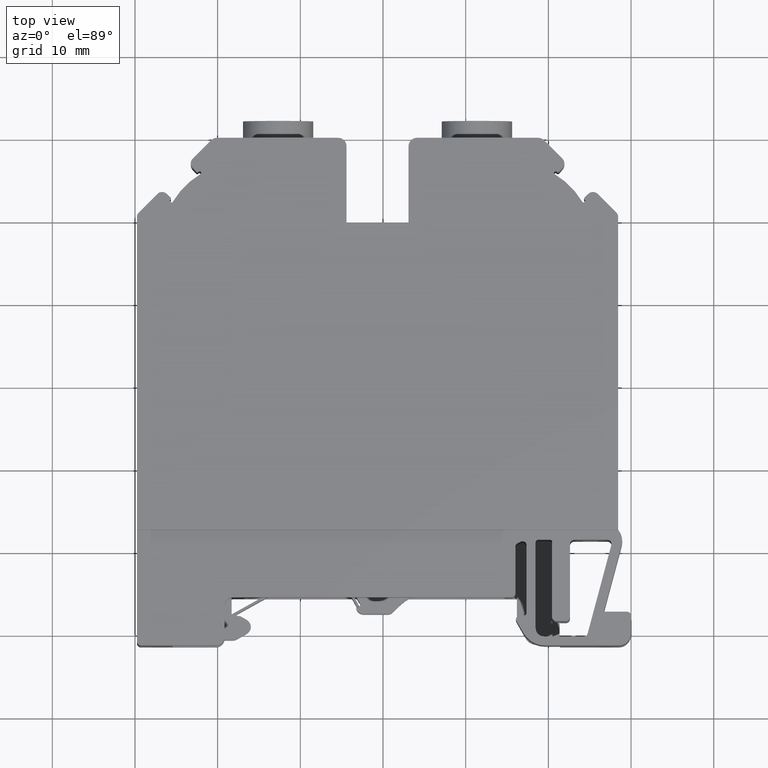
[diagram: clean part render]
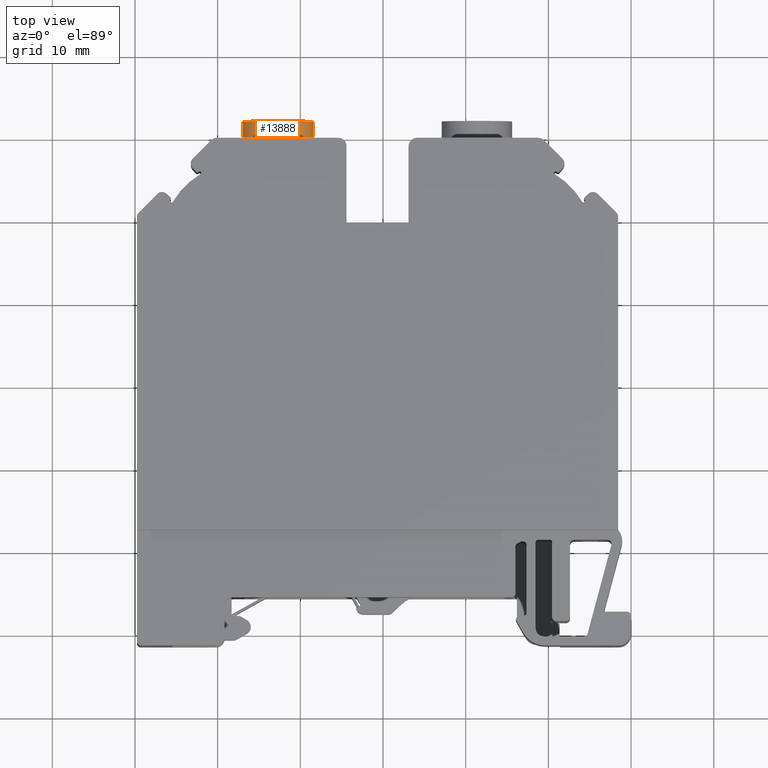
[diagram: same view with one face highlighted and labeled with its STEP entity id]
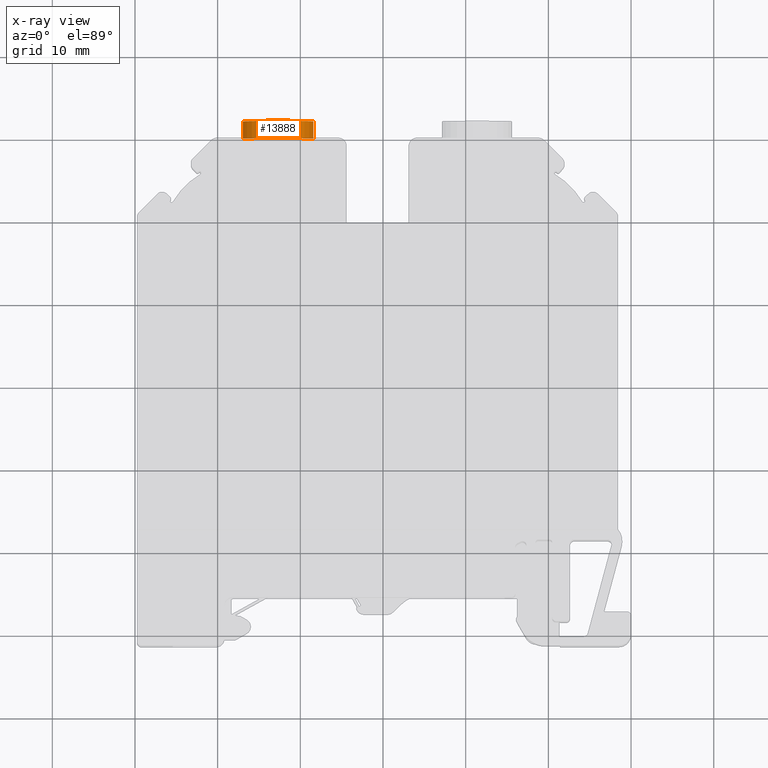
[diagram: x-ray of the same camera — body ghosted, the highlighted face saturated]
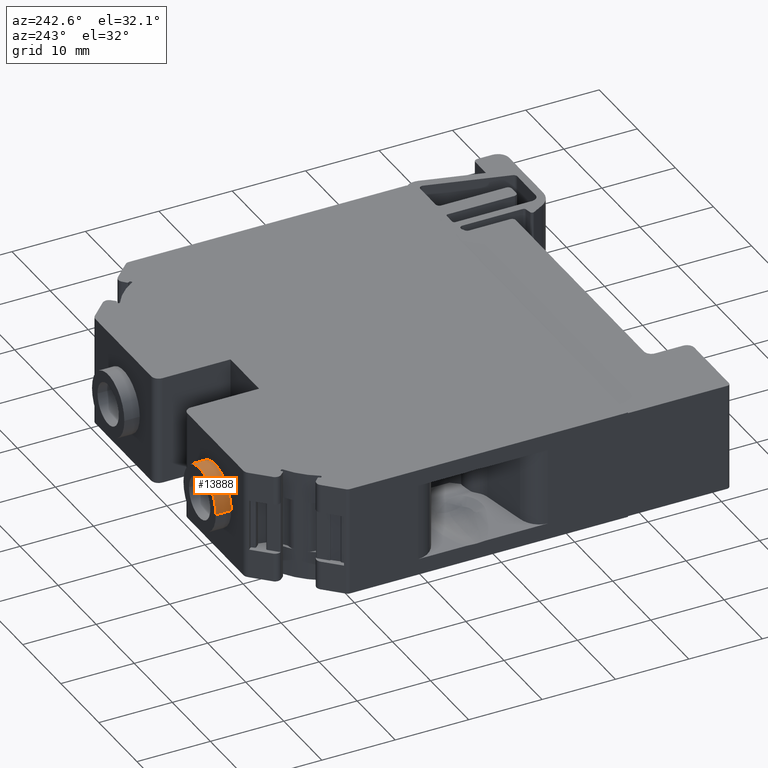
[diagram: same view with one face highlighted and labeled with its STEP entity id]
A machine part, top view. The second image highlights one B-rep face of the part: STEP entity #13888.
The next image is the same camera in x-ray: the body ghosted, the highlighted face saturated — about 0% of this face is hidden behind the body in this view.
A second angle (auxiliary view) of the same face is appended — the face is thin or edge-on in the first view.
In plain terms, the highlighted cylindrical surface (edge-blend (fillet) strip) has radius 4.25 mm, axis along (0, 1, -0).
Its self-contained STEP definition (entity closure, byte-faithful):
#196 = CARTESIAN_POINT ( 'NONE',  ( 1.567630163408580500, -39.97966301493495700, -104.2930641829441800 ) ) ;
#200 = CARTESIAN_POINT ( 'NONE',  ( 1.567630163408658000, -37.87966301493494800, -104.2930641829441800 ) ) ;
#208 = CARTESIAN_POINT ( 'NONE',  ( -6.932369836591342400, -37.87966301493462900, -104.2930641829441900 ) ) ;
#211 = CARTESIAN_POINT ( 'NONE',  ( -6.932369836591419700, -39.97966301493463700, -104.2930641829441800 ) ) ;
#5428 = VERTEX_POINT ( 'NONE', #196 ) ;
#5431 = VERTEX_POINT ( 'NONE', #200 ) ;
#5432 = VERTEX_POINT ( 'NONE', #208 ) ;
#5439 = VERTEX_POINT ( 'NONE', #211 ) ;
#6060 = ORIENTED_EDGE ( 'NONE', *, *, #10627, .F. ) ;
#6130 = ORIENTED_EDGE ( 'NONE', *, *, #10623, .T. ) ;
#6152 = ORIENTED_EDGE ( 'NONE', *, *, #11540, .F. ) ;
#6158 = ORIENTED_EDGE ( 'NONE', *, *, #11542, .T. ) ;
#6556 = AXIS2_PLACEMENT_3D ( 'NONE', #15977, #15964, #15934 ) ;
#10415 = EDGE_LOOP ( 'NONE', ( #6060, #6130, #6158, #6152 ) ) ;
#10623 = EDGE_CURVE ( 'NONE', #5428, #5431, #11575, .T. ) ;
#10627 = EDGE_CURVE ( 'NONE', #5428, #5439, #13236, .T. ) ;
#11540 = EDGE_CURVE ( 'NONE', #5439, #5432, #11545, .T. ) ;
#11542 = EDGE_CURVE ( 'NONE', #5431, #5432, #13213, .T. ) ;
#11545 = LINE ( 'NONE', #11556, #13244 ) ;
#11546 = DIRECTION ( 'NONE',  ( -1.000000000000000000, 3.755166112702735500E-014, 0.0000000000000000000 ) ) ;
#11556 = CARTESIAN_POINT ( 'NONE',  ( -6.932369836591648800, -46.15698356992284300, -104.2930641829441100 ) ) ;
#11557 = DIRECTION ( 'NONE',  ( 3.703930697252520300E-014, 1.000000000000000000, -1.059119155224958300E-014 ) ) ;
#11560 = CARTESIAN_POINT ( 'NONE',  ( -2.682369836591342000, -37.87966301493479200, -104.2930641829441900 ) ) ;
#11567 = DIRECTION ( 'NONE',  ( -3.703930697252520300E-014, -1.000000000000000000, 1.059119155224958300E-014 ) ) ;
#11575 = LINE ( 'NONE', #11582, #13234 ) ;
#11582 = CARTESIAN_POINT ( 'NONE',  ( 1.567630163408351600, -46.15698356992316300, -104.2930641829441100 ) ) ;
#11586 = CARTESIAN_POINT ( 'NONE',  ( -2.682369836591419700, -39.97966301493479300, -104.2930641829441800 ) ) ;
#11594 = DIRECTION ( 'NONE',  ( -3.703930697252520300E-014, -1.000000000000000000, 1.059119155224958300E-014 ) ) ;
#11597 = DIRECTION ( 'NONE',  ( 3.703930697252520300E-014, 1.000000000000000000, -1.059119155224958300E-014 ) ) ;
#11599 = DIRECTION ( 'NONE',  ( -1.000000000000000000, 3.755166112702735500E-014, 0.0000000000000000000 ) ) ;
#13213 = CIRCLE ( 'NONE', #13305, 4.250000000000000000 ) ;
#13234 = VECTOR ( 'NONE', #11597, 1000.000000000000000 ) ;
#13236 = CIRCLE ( 'NONE', #13242, 4.250000000000000000 ) ;
#13242 = AXIS2_PLACEMENT_3D ( 'NONE', #11586, #11594, #11599 ) ;
#13244 = VECTOR ( 'NONE', #11557, 1000.000000000000000 ) ;
#13305 = AXIS2_PLACEMENT_3D ( 'NONE', #11560, #11567, #11546 ) ;
#13888 = ADVANCED_FACE ( 'NONE', ( #15942 ), #15979, .T. ) ;
#15934 = DIRECTION ( 'NONE',  ( -1.000000000000000000, 3.755166112702735500E-014, 0.0000000000000000000 ) ) ;
#15942 = FACE_OUTER_BOUND ( 'NONE', #10415, .T. ) ;
#15964 = DIRECTION ( 'NONE',  ( 3.703930697252520300E-014, 1.000000000000000000, -1.059119155224958300E-014 ) ) ;
#15977 = CARTESIAN_POINT ( 'NONE',  ( -2.682369836591648800, -46.15698356992300000, -104.2930641829441100 ) ) ;
#15979 = CYLINDRICAL_SURFACE ( 'NONE', #6556, 4.250000000000000000 ) ;